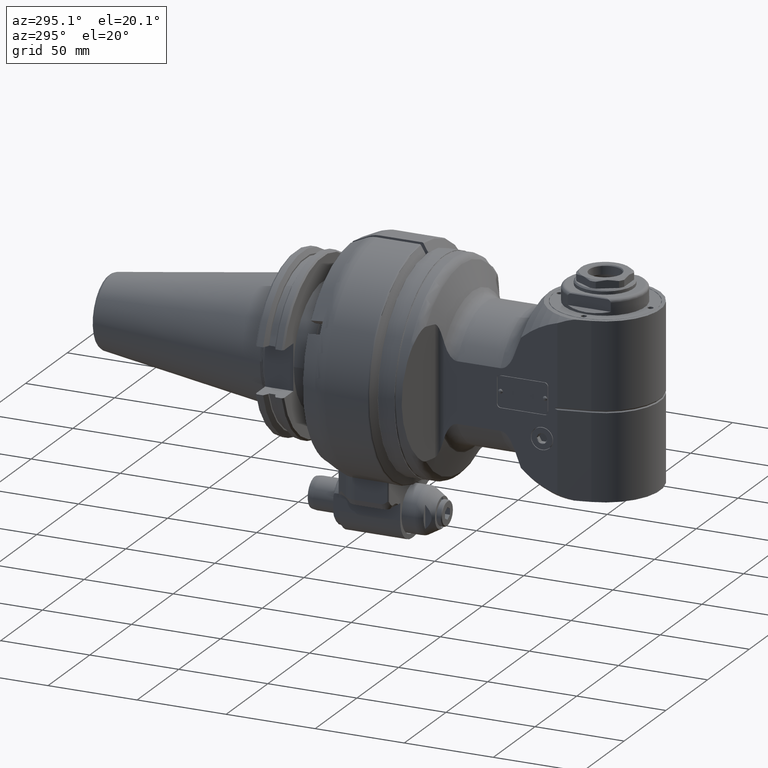
[diagram: clean part render]
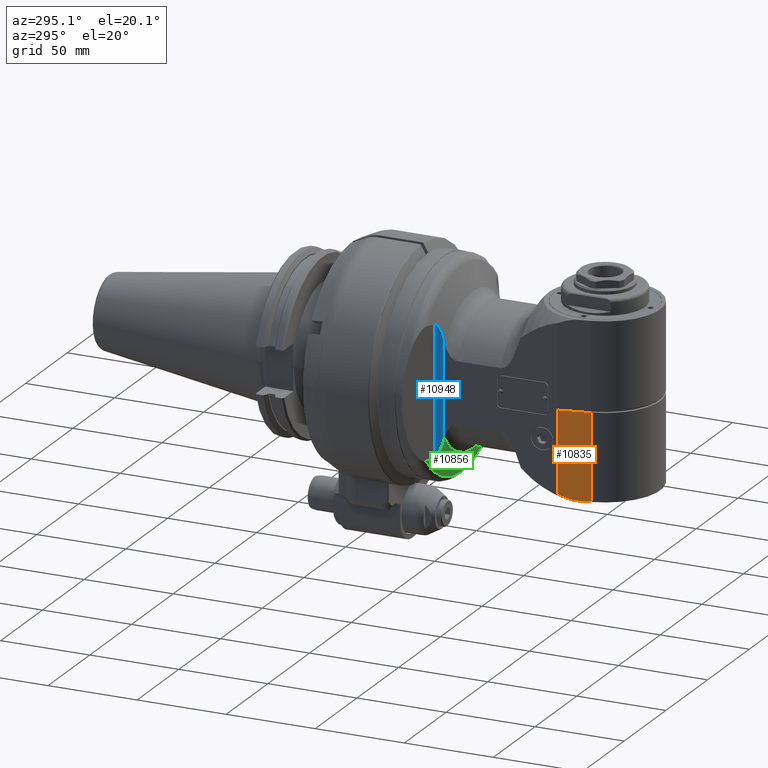
[diagram: same view with three faces highlighted in distinct colors, each labeled with its STEP entity id]
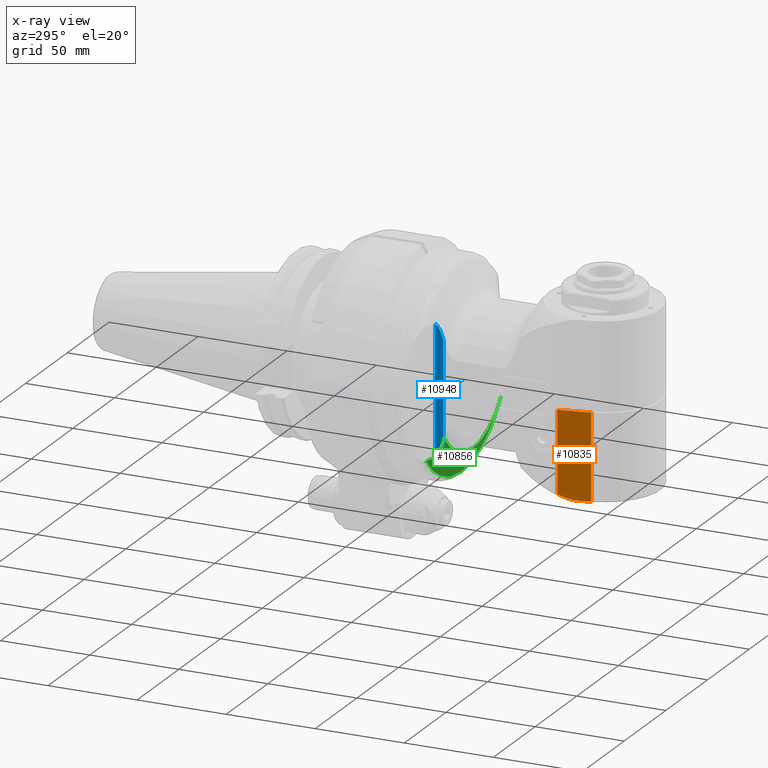
[diagram: x-ray of the same camera — body ghosted, the three highlighted faces saturated]
A machine part, auxiliary view with three faces highlighted in distinct colors.
The next image is the same camera in x-ray (body ghosted, the three faces saturated) — at least one of them is partly hidden behind the body in this view.
Their STEP definitions:

[orange] entity #10835 — the highlighted planar face has unit normal (0.9781, 0.2079, -0).
#116=(
BOUNDED_CURVE()
B_SPLINE_CURVE(2,(#21710,#21711,#21712),.UNSPECIFIED.,.F.,.F.)
B_SPLINE_CURVE_WITH_KNOTS((3,3),(-0.682979210174916,-0.608381839727737),
 .UNSPECIFIED.)
CURVE()
GEOMETRIC_REPRESENTATION_ITEM()
RATIONAL_B_SPLINE_CURVE((1.05675232811696,1.05761860615081,1.05761860615078))
REPRESENTATION_ITEM('')
);
#298=B_SPLINE_CURVE_WITH_KNOTS('',3,(#21716,#21717,#21718,#21719),
 .UNSPECIFIED.,.F.,.F.,(4,4),(0.,1.),.UNSPECIFIED.);
#299=B_SPLINE_CURVE_WITH_KNOTS('',3,(#21720,#21721,#21722,#21723),
 .UNSPECIFIED.,.F.,.F.,(4,4),(0.,1.),.UNSPECIFIED.);
#1013=LINE('',#21656,#1706);
#1014=LINE('',#21714,#1707);
#1015=LINE('',#21725,#1708);
#1016=LINE('',#21726,#1709);
#1706=VECTOR('',#14735,8.87507655635602);
#1707=VECTOR('',#14742,10.);
#1708=VECTOR('',#14743,48.33431457505);
#1709=VECTOR('',#14744,17.0000000000092);
#2371=PLANE('',#12000);
#2879=FACE_OUTER_BOUND('',#3599,.T.);
#3599=EDGE_LOOP('',(#9401,#9402,#9403,#9404,#9405,#9406,#9407));
#5231=VERTEX_POINT('',#21654);
#5232=VERTEX_POINT('',#21655);
#5245=VERTEX_POINT('',#21708);
#5246=VERTEX_POINT('',#21709);
#5247=VERTEX_POINT('',#21713);
#5248=VERTEX_POINT('',#21715);
#5249=VERTEX_POINT('',#21724);
#6671=EDGE_CURVE('',#5231,#5232,#1013,.T.);
#6686=EDGE_CURVE('',#5245,#5246,#116,.T.);
#6687=EDGE_CURVE('',#5245,#5247,#1014,.T.);
#6688=EDGE_CURVE('',#5247,#5248,#298,.T.);
#6689=EDGE_CURVE('',#5248,#5232,#299,.T.);
#6690=EDGE_CURVE('',#5249,#5231,#1015,.T.);
#6691=EDGE_CURVE('',#5246,#5249,#1016,.T.);
#9401=ORIENTED_EDGE('',*,*,#6686,.F.);
#9402=ORIENTED_EDGE('',*,*,#6687,.T.);
#9403=ORIENTED_EDGE('',*,*,#6688,.T.);
#9404=ORIENTED_EDGE('',*,*,#6689,.T.);
#9405=ORIENTED_EDGE('',*,*,#6671,.F.);
#9406=ORIENTED_EDGE('',*,*,#6690,.F.);
#9407=ORIENTED_EDGE('',*,*,#6691,.F.);
#10835=ADVANCED_FACE('',(#2879),#2371,.F.);
#12000=AXIS2_PLACEMENT_3D('',#21707,#14740,#14741);
#14735=DIRECTION('',(-0.978147600733797,0.,-0.207911690817799));
#14740=DIRECTION('center_axis',(-0.207911690817799,0.,0.978147600733797));
#14741=DIRECTION('ref_axis',(-0.978147600733797,0.,-0.207911690817799));
#14742=DIRECTION('',(0.,1.,0.));
#14743=DIRECTION('',(-1.481819042937E-13,1.,-4.005909615083E-14));
#14744=DIRECTION('',(0.978147598569948,-2.0815179893441E-8,0.20791170099791));
#21654=CARTESIAN_POINT('',(284.5083594153,49.,-30.32257562275));
#21655=CARTESIAN_POINT('',(275.8272245754,49.,-32.16780779572));
#21656=CARTESIAN_POINT('',(284.5083594153,49.,-30.32257562275));
#21707=CARTESIAN_POINT('Origin',(304.1477751026,-70.8000024,-26.14808895106));
#21708=CARTESIAN_POINT('',(267.207437956005,0.646011301948827,-34.000000000926));
#21709=CARTESIAN_POINT('',(267.879850218269,0.665685616761123,-33.8570744388943));
#21710=CARTESIAN_POINT('Ctrl Pts',(267.207437956063,0.646011304281904,-34.000000001861));
#21711=CARTESIAN_POINT('Ctrl Pts',(267.543919460402,0.665685424943215,-33.9284786502331));
#21712=CARTESIAN_POINT('Ctrl Pts',(267.87985020291,0.665685424942492,-33.8570743666461));
#21713=CARTESIAN_POINT('',(267.2074379648,46.31735122135,-34.));
#21714=CARTESIAN_POINT('',(267.207437964818,-57.38245956552,-34.));
#21715=CARTESIAN_POINT('',(271.7592494227,47.98986308028,-33.03248260713));
#21716=CARTESIAN_POINT('Ctrl Pts',(267.2074379648,46.31735122135,-34.));
#21717=CARTESIAN_POINT('Ctrl Pts',(268.7212545366,46.88467685953,-33.6782283545));
#21718=CARTESIAN_POINT('Ctrl Pts',(270.2386304167,47.4418811097,-33.35570015467));
#21719=CARTESIAN_POINT('Ctrl Pts',(271.7592494227,47.98986308028,-33.03248260713));
#21720=CARTESIAN_POINT('Ctrl Pts',(271.7592494227,47.98986308028,-33.03248260713));
#21721=CARTESIAN_POINT('Ctrl Pts',(273.1139632923,48.33195312284,-32.74452928498));
#21722=CARTESIAN_POINT('Ctrl Pts',(274.4699790139,48.66856440992,-32.45629924562));
#21723=CARTESIAN_POINT('Ctrl Pts',(275.8272245754,49.,-32.16780779572));
#21724=CARTESIAN_POINT('',(284.5083594154,0.6656854249495,-30.32257562275));
#21725=CARTESIAN_POINT('',(284.5083594154,0.6656854249495,-30.32257562275));
#21726=CARTESIAN_POINT('',(267.8798502397,0.6656857788076,-33.85707453971));

[blue] entity #10948 — the highlighted cylindrical surface (edge-blend (fillet) strip) has radius 4 mm, axis along (0, -0, 1).
#306=B_SPLINE_CURVE_WITH_KNOTS('',3,(#21954,#21955,#21956,#21957,#21958,
#21959,#21960,#21961,#21962,#21963,#21964,#21965,#21966,#21967,#21968,#21969,
#21970),.UNSPECIFIED.,.F.,.F.,(4,2,2,2,2,3,2,4),(-0.913726909491711,-0.821922540125374,
-0.464655339177234,-0.289288237837622,-0.193062417734441,-1.77635683940025E-15,
0.0674359678072207,0.100419152924505),.UNSPECIFIED.);
#309=B_SPLINE_CURVE_WITH_KNOTS('',3,(#22018,#22019,#22020,#22021,#22022,
#22023,#22024,#22025,#22026,#22027,#22028,#22029,#22030,#22031,#22032,#22033),
 .UNSPECIFIED.,.F.,.F.,(4,2,2,2,2,2,2,4),(7.24161732157832,7.27460050669652,
7.34203647450374,7.53509889223819,7.63132471234136,7.80669181368098,8.16395901462912,
8.25576338331654),.UNSPECIFIED.);
#1021=LINE('',#21833,#1714);
#1088=LINE('',#22536,#1781);
#1714=VECTOR('',#14763,53.7640571632);
#1781=VECTOR('',#15276,72.12424357356);
#2017=CYLINDRICAL_SURFACE('',#12230,4.);
#2992=FACE_OUTER_BOUND('',#3727,.T.);
#3727=EDGE_LOOP('',(#9942,#9943,#9944,#9945));
#5266=VERTEX_POINT('',#21828);
#5267=VERTEX_POINT('',#21832);
#5286=VERTEX_POINT('',#21953);
#5293=VERTEX_POINT('',#22016);
#6712=EDGE_CURVE('',#5267,#5266,#1021,.T.);
#6748=EDGE_CURVE('',#5267,#5286,#306,.T.);
#6759=EDGE_CURVE('',#5293,#5266,#309,.T.);
#6942=EDGE_CURVE('',#5293,#5286,#1088,.T.);
#9942=ORIENTED_EDGE('',*,*,#6712,.T.);
#9943=ORIENTED_EDGE('',*,*,#6759,.F.);
#9944=ORIENTED_EDGE('',*,*,#6942,.T.);
#9945=ORIENTED_EDGE('',*,*,#6748,.F.);
#10948=ADVANCED_FACE('',(#2992),#2017,.F.);
#12230=AXIS2_PLACEMENT_3D('',#22535,#15274,#15275);
#14763=DIRECTION('',(-3.805663057913E-11,-1.,6.437486024133E-13));
#15274=DIRECTION('center_axis',(0.,-1.,0.));
#15275=DIRECTION('ref_axis',(0.,0.,1.));
#15276=DIRECTION('',(1.891516617804E-14,1.,5.162264102757E-14));
#21828=CARTESIAN_POINT('',(203.363925983872,-26.8820293115767,-34.0000000488218));
#21832=CARTESIAN_POINT('',(203.363925985886,26.8820293046666,-34.0000000488334));
#21833=CARTESIAN_POINT('',(203.3639257156,26.88202857819,-34.0000001465));
#21953=CARTESIAN_POINT('',(199.6051566057,36.06212178678,-36.63191942669));
#21954=CARTESIAN_POINT('Ctrl Pts',(203.363926113952,26.8820293417044,-34.0000000000001));
#21955=CARTESIAN_POINT('Ctrl Pts',(203.273795019856,27.1936757979242,-34.0000000219684));
#21956=CARTESIAN_POINT('Ctrl Pts',(203.183702761318,27.4979443311172,-34.0030763654917));
#21957=CARTESIAN_POINT('Ctrl Pts',(202.750476659065,28.9304906979183,-34.0322539598207));
#21958=CARTESIAN_POINT('Ctrl Pts',(202.304381177674,30.2854040625854,-34.1185455683438));
#21959=CARTESIAN_POINT('Ctrl Pts',(201.702254979656,31.9387735637612,-34.3552474449601));
#21960=CARTESIAN_POINT('Ctrl Pts',(201.455284966969,32.584206915034,-34.4755783454566));
#21961=CARTESIAN_POINT('Ctrl Pts',(201.122077062777,33.3996647561447,-34.6843526827933));
#21962=CARTESIAN_POINT('Ctrl Pts',(200.977156019247,33.741398110545,-34.7861698763569));
#21963=CARTESIAN_POINT('Ctrl Pts',(200.604316708804,34.578341200684,-35.0868029985124));
#21964=CARTESIAN_POINT('Ctrl Pts',(200.294203214008,35.2181684523155,-35.3881670021329));
#21965=CARTESIAN_POINT('Ctrl Pts',(200.022230869373,35.6295918922913,-35.8015763883186));
#21966=CARTESIAN_POINT('Ctrl Pts',(199.927231964395,35.7733005341851,-35.9459787136659));
#21967=CARTESIAN_POINT('Ctrl Pts',(199.823736294382,35.908180692713,-36.1249607521001));
#21968=CARTESIAN_POINT('Ctrl Pts',(199.68612856568,36.0261701037478,-36.4234675959914));
#21969=CARTESIAN_POINT('Ctrl Pts',(199.643418256438,36.0519458861449,-36.5267964054153));
#21970=CARTESIAN_POINT('Ctrl Pts',(199.605156605748,36.0621217866443,-36.6319194267206));
#22016=CARTESIAN_POINT('',(199.6051566057,-36.06212178678,-36.6319194267));
#22018=CARTESIAN_POINT('Ctrl Pts',(199.605156605745,-36.0621217866451,-36.6319194267293));
#22019=CARTESIAN_POINT('Ctrl Pts',(199.643418256436,-36.0519458861463,-36.5267964054211));
#22020=CARTESIAN_POINT('Ctrl Pts',(199.686128565679,-36.0261701037488,-36.4234675959942));
#22021=CARTESIAN_POINT('Ctrl Pts',(199.823736294382,-35.9081806927129,-36.1249607521001));
#22022=CARTESIAN_POINT('Ctrl Pts',(199.927231964395,-35.7733005341851,-35.9459787136659));
#22023=CARTESIAN_POINT('Ctrl Pts',(200.294203214008,-35.2181684523155,-35.3881670021329));
#22024=CARTESIAN_POINT('Ctrl Pts',(200.604316708804,-34.578341200684,-35.0868029985124));
#22025=CARTESIAN_POINT('Ctrl Pts',(200.977156019247,-33.741398110545,-34.7861698763569));
#22026=CARTESIAN_POINT('Ctrl Pts',(201.122077062776,-33.3996647561448,-34.6843526827933));
#22027=CARTESIAN_POINT('Ctrl Pts',(201.455284966969,-32.584206915034,-34.4755783454566));
#22028=CARTESIAN_POINT('Ctrl Pts',(201.702254979656,-31.9387735637612,-34.3552474449601));
#22029=CARTESIAN_POINT('Ctrl Pts',(202.304381177674,-30.2854040625854,-34.1185455683438));
#22030=CARTESIAN_POINT('Ctrl Pts',(202.750476659065,-28.9304906979183,-34.0322539598207));
#22031=CARTESIAN_POINT('Ctrl Pts',(203.183702760663,-27.497944333283,-34.0030763655358));
#22032=CARTESIAN_POINT('Ctrl Pts',(203.273795018524,-27.1936758024246,-34.0000000220135));
#22033=CARTESIAN_POINT('Ctrl Pts',(203.363926111952,-26.8820293486187,-34.0000000000001));
#22535=CARTESIAN_POINT('Origin',(203.3639270889,-70.8000024,-38.));
#22536=CARTESIAN_POINT('',(199.6051566057,-36.06212178678,-36.6319194267));

[green] entity #10856 — the highlighted conical surface has half-angle 65 deg.
#57=ELLIPSE('',#12046,62.1233155909331,36.4919332928876);
#58=ELLIPSE('',#12048,62.1233155913701,36.4919332929638);
#91=(
BOUNDED_CURVE()
B_SPLINE_CURVE(2,(#21497,#21498,#21499),.UNSPECIFIED.,.F.,.F.)
B_SPLINE_CURVE_WITH_KNOTS((3,3),(1.56708411258678,1.68251556389848),
 .UNSPECIFIED.)
CURVE()
GEOMETRIC_REPRESENTATION_ITEM()
RATIONAL_B_SPLINE_CURVE((1.19283212323042,1.19857039948368,1.2041077705244))
REPRESENTATION_ITEM('')
);
#127=(
BOUNDED_CURVE()
B_SPLINE_CURVE(2,(#21835,#21836,#21837),.UNSPECIFIED.,.F.,.F.)
B_SPLINE_CURVE_WITH_KNOTS((3,3),(8.04558367550869,8.16101511858908),
 .UNSPECIFIED.)
CURVE()
GEOMETRIC_REPRESENTATION_ITEM()
RATIONAL_B_SPLINE_CURVE((1.20410777052443,1.19857039987858,1.19283212404884))
REPRESENTATION_ITEM('')
);
#306=B_SPLINE_CURVE_WITH_KNOTS('',3,(#21954,#21955,#21956,#21957,#21958,
#21959,#21960,#21961,#21962,#21963,#21964,#21965,#21966,#21967,#21968,#21969,
#21970),.UNSPECIFIED.,.F.,.F.,(4,2,2,2,2,3,2,4),(-0.913726909491711,-0.821922540125374,
-0.464655339177234,-0.289288237837622,-0.193062417734441,-1.77635683940025E-15,
0.0674359678072207,0.100419152924505),.UNSPECIFIED.);
#307=B_SPLINE_CURVE_WITH_KNOTS('',3,(#21977,#21978,#21979,#21980,#21981,
#21982,#21983,#21984,#21985,#21986,#21987,#21988,#21989,#21990,#21991,#21992),
 .UNSPECIFIED.,.F.,.F.,(4,2,2,2,2,2,2,4),(-8.25576337559417,-8.16395901462912,
-7.80669181368098,-7.63132471234137,-7.53509889223819,-7.34203647450375,
-7.27460050669652,-7.24161732158409),.UNSPECIFIED.);
#428=CONICAL_SURFACE('',#12045,49.36607260739,1.13446401379631);
#2900=FACE_OUTER_BOUND('',#3622,.T.);
#3622=EDGE_LOOP('',(#9522,#9523,#9524,#9525,#9526,#9527,#9528,#9529));
#4306=CIRCLE('',#12044,42.61905390607);
#4307=CIRCLE('',#12047,56.1130913087);
#5201=VERTEX_POINT('',#21479);
#5202=VERTEX_POINT('',#21496);
#5267=VERTEX_POINT('',#21832);
#5268=VERTEX_POINT('',#21834);
#5286=VERTEX_POINT('',#21953);
#5287=VERTEX_POINT('',#21971);
#5288=VERTEX_POINT('',#21973);
#5289=VERTEX_POINT('',#21975);
#6634=EDGE_CURVE('',#5202,#5201,#91,.T.);
#6713=EDGE_CURVE('',#5268,#5267,#127,.T.);
#6747=EDGE_CURVE('',#5268,#5201,#4306,.T.);
#6748=EDGE_CURVE('',#5267,#5286,#306,.T.);
#6749=EDGE_CURVE('',#5287,#5286,#57,.T.);
#6750=EDGE_CURVE('',#5288,#5287,#4307,.T.);
#6751=EDGE_CURVE('',#5289,#5288,#58,.T.);
#6752=EDGE_CURVE('',#5202,#5289,#307,.T.);
#9522=ORIENTED_EDGE('',*,*,#6747,.F.);
#9523=ORIENTED_EDGE('',*,*,#6713,.T.);
#9524=ORIENTED_EDGE('',*,*,#6748,.T.);
#9525=ORIENTED_EDGE('',*,*,#6749,.F.);
#9526=ORIENTED_EDGE('',*,*,#6750,.F.);
#9527=ORIENTED_EDGE('',*,*,#6751,.F.);
#9528=ORIENTED_EDGE('',*,*,#6752,.F.);
#9529=ORIENTED_EDGE('',*,*,#6634,.T.);
#10856=ADVANCED_FACE('',(#2900),#428,.T.);
#12044=AXIS2_PLACEMENT_3D('',#21951,#14841,#14842);
#12045=AXIS2_PLACEMENT_3D('',#21952,#14843,#14844);
#12046=AXIS2_PLACEMENT_3D('',#21972,#14845,#14846);
#12047=AXIS2_PLACEMENT_3D('',#21974,#14847,#14848);
#12048=AXIS2_PLACEMENT_3D('',#21976,#14849,#14850);
#14841=DIRECTION('center_axis',(1.,0.,0.));
#14842=DIRECTION('ref_axis',(0.,0.602968185274902,-0.797765233352702));
#14843=DIRECTION('center_axis',(-1.,0.,0.));
#14844=DIRECTION('ref_axis',(0.,1.,-3.89573857868908E-14));
#14845=DIRECTION('center_axis',(0.939692620785897,0.,-0.342020143325699));
#14846=DIRECTION('ref_axis',(-0.3420201433257,-5.36138331026489E-16,-0.939692620785897));
#14847=DIRECTION('center_axis',(-1.,0.,0.));
#14848=DIRECTION('ref_axis',(0.,1.,0.));
#14849=DIRECTION('center_axis',(0.939692620785573,0.,0.34202014332659));
#14850=DIRECTION('ref_axis',(0.34202014332659,-8.57821329636347E-16,-0.939692620785573));
#21479=CARTESIAN_POINT('',(203.701657532569,25.6979329826565,33.9999999850205));
#21496=CARTESIAN_POINT('',(203.363925961156,26.8820293902331,34.0000000486926));
#21497=CARTESIAN_POINT('Ctrl Pts',(203.363926089207,26.8820294272666,34.));
#21498=CARTESIAN_POINT('Ctrl Pts',(203.536594650478,26.2849929610739,34.));
#21499=CARTESIAN_POINT('Ctrl Pts',(203.701657527427,25.6979329812107,34.));
#21832=CARTESIAN_POINT('',(203.363925985886,26.8820293046666,-34.0000000488334));
#21834=CARTESIAN_POINT('',(203.70165753257,25.6979329826522,-33.9999999850213));
#21835=CARTESIAN_POINT('Ctrl Pts',(203.701657527428,25.6979329812066,-34.));
#21836=CARTESIAN_POINT('Ctrl Pts',(203.536594662304,26.2849929190136,-34.));
#21837=CARTESIAN_POINT('Ctrl Pts',(203.363926113952,26.8820293417044,-34.));
#21951=CARTESIAN_POINT('Origin',(203.7016575474,0.,0.));
#21952=CARTESIAN_POINT('Origin',(200.5554710573,0.,0.));
#21953=CARTESIAN_POINT('',(199.6051566057,36.06212178678,-36.63191942669));
#21954=CARTESIAN_POINT('Ctrl Pts',(203.363926113952,26.8820293417044,-34.0000000000001));
#21955=CARTESIAN_POINT('Ctrl Pts',(203.273795019856,27.1936757979242,-34.0000000219684));
#21956=CARTESIAN_POINT('Ctrl Pts',(203.183702761318,27.4979443311172,-34.0030763654917));
#21957=CARTESIAN_POINT('Ctrl Pts',(202.750476659065,28.9304906979183,-34.0322539598207));
#21958=CARTESIAN_POINT('Ctrl Pts',(202.304381177674,30.2854040625854,-34.1185455683438));
#21959=CARTESIAN_POINT('Ctrl Pts',(201.702254979656,31.9387735637612,-34.3552474449601));
#21960=CARTESIAN_POINT('Ctrl Pts',(201.455284966969,32.584206915034,-34.4755783454566));
#21961=CARTESIAN_POINT('Ctrl Pts',(201.122077062777,33.3996647561447,-34.6843526827933));
#21962=CARTESIAN_POINT('Ctrl Pts',(200.977156019247,33.741398110545,-34.7861698763569));
#21963=CARTESIAN_POINT('Ctrl Pts',(200.604316708804,34.578341200684,-35.0868029985124));
#21964=CARTESIAN_POINT('Ctrl Pts',(200.294203214008,35.2181684523155,-35.3881670021329));
#21965=CARTESIAN_POINT('Ctrl Pts',(200.022230869373,35.6295918922913,-35.8015763883186));
#21966=CARTESIAN_POINT('Ctrl Pts',(199.927231964395,35.7733005341851,-35.9459787136659));
#21967=CARTESIAN_POINT('Ctrl Pts',(199.823736294382,35.908180692713,-36.1249607521001));
#21968=CARTESIAN_POINT('Ctrl Pts',(199.68612856568,36.0261701037478,-36.4234675959914));
#21969=CARTESIAN_POINT('Ctrl Pts',(199.643418256438,36.0519458861449,-36.5267964054153));
#21970=CARTESIAN_POINT('Ctrl Pts',(199.605156605748,36.0621217866443,-36.6319194267206));
#21971=CARTESIAN_POINT('',(197.4092845672,36.44687063463,-42.66502826866));
#21972=CARTESIAN_POINT('Origin',(196.353689964413,-1.11022302462516E-14,
-45.5652506037463));
#21973=CARTESIAN_POINT('',(197.409284566838,36.4468706345182,42.665028269676));
#21974=CARTESIAN_POINT('Origin',(197.4092845672,0.,0.));
#21975=CARTESIAN_POINT('',(199.6051566057,36.06212178675,36.63191942664));
#21976=CARTESIAN_POINT('Origin',(196.35368996423,0.,45.5652506041856));
#21977=CARTESIAN_POINT('Ctrl Pts',(203.363926089207,26.8820294272666,34.0000000000001));
#21978=CARTESIAN_POINT('Ctrl Pts',(203.273795003369,27.1936758536154,34.000000022526));
#21979=CARTESIAN_POINT('Ctrl Pts',(203.183702753213,27.4979443579174,34.0030763660376));
#21980=CARTESIAN_POINT('Ctrl Pts',(202.750476659065,28.9304906979183,34.0322539598207));
#21981=CARTESIAN_POINT('Ctrl Pts',(202.304381177674,30.2854040625854,34.1185455683438));
#21982=CARTESIAN_POINT('Ctrl Pts',(201.702254979656,31.9387735637612,34.3552474449601));
#21983=CARTESIAN_POINT('Ctrl Pts',(201.455284966969,32.584206915034,34.4755783454566));
#21984=CARTESIAN_POINT('Ctrl Pts',(201.122077062777,33.3996647561447,34.6843526827933));
#21985=CARTESIAN_POINT('Ctrl Pts',(200.977156019247,33.741398110545,34.7861698763569));
#21986=CARTESIAN_POINT('Ctrl Pts',(200.604316708804,34.578341200684,35.0868029985124));
#21987=CARTESIAN_POINT('Ctrl Pts',(200.294203214008,35.2181684523155,35.3881670021329));
#21988=CARTESIAN_POINT('Ctrl Pts',(199.927231964395,35.7733005341851,35.9459787136659));
#21989=CARTESIAN_POINT('Ctrl Pts',(199.823736294382,35.9081806927129,36.1249607521001));
#21990=CARTESIAN_POINT('Ctrl Pts',(199.686128565686,36.026170103742,36.423467595977));
#21991=CARTESIAN_POINT('Ctrl Pts',(199.643418256451,36.0519458861374,36.526796405385));
#21992=CARTESIAN_POINT('Ctrl Pts',(199.605156605765,36.0621217866398,36.6319194266743));